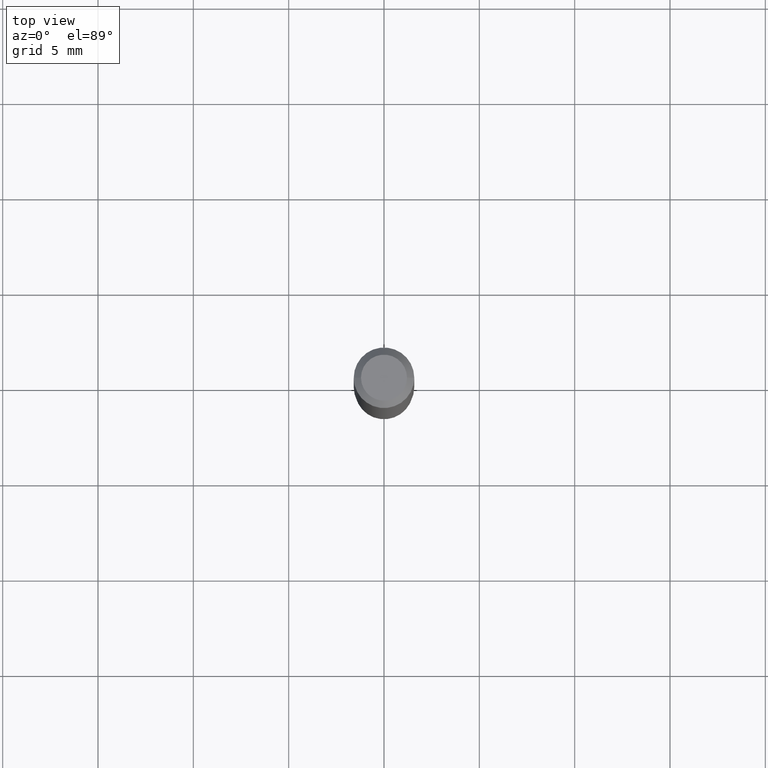
[diagram: clean part render]
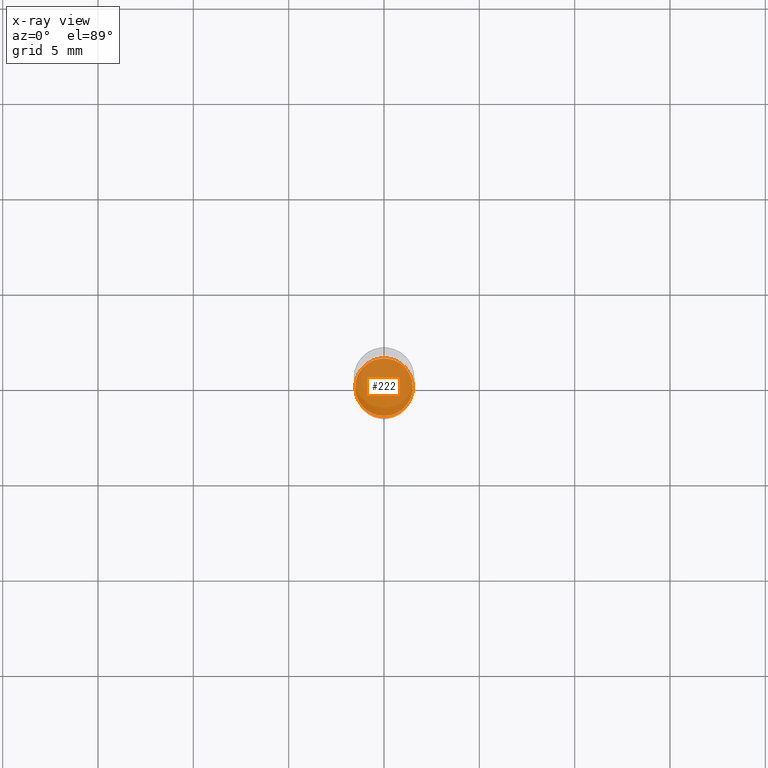
[diagram: x-ray — body ghosted, one internal face saturated and labeled with its STEP entity id]
A machine part, top view, then the same camera in x-ray: the body is ghosted and one INTERNAL B-rep face — a face not visible from any outside direction — is saturated and labeled: STEP entity #222.
In plain terms, the highlighted planar face has unit normal (-0, 0, 1).
Its self-contained STEP definition (entity closure, byte-faithful):
#71 = ORIENTED_EDGE ( 'NONE', *, *, #126, .F. ) ;
#77 = EDGE_CURVE ( 'NONE', #201, #381, #263, .T. ) ;
#89 = DIRECTION ( 'NONE',  ( -2.445468806185136597E-29, 3.491481338843145583E-15, 1.000000000000000000 ) ) ;
#99 = CIRCLE ( 'NONE', #116, 0.05950000000000001815 ) ;
#108 = DIRECTION ( 'NONE',  ( 1.000000000000000000, -6.982962677686265922E-15, 4.876176775795935793E-29 ) ) ;
#116 = AXIS2_PLACEMENT_3D ( 'NONE', #220, #505, #143 ) ;
#126 = EDGE_CURVE ( 'NONE', #381, #201, #99, .T. ) ;
#138 = FACE_OUTER_BOUND ( 'NONE', #379, .T. ) ;
#143 = DIRECTION ( 'NONE',  ( 1.000000000000000000, -6.982962677686273810E-15, 0.000000000000000000 ) ) ;
#174 = CARTESIAN_POINT ( 'NONE',  ( 2.787834439051055989E-29, -3.980288726281186698E-15, -1.140000000000000124 ) ) ;
#194 = ORIENTED_EDGE ( 'NONE', *, *, #77, .F. ) ;
#201 = VERTEX_POINT ( 'NONE', #304 ) ;
#215 = AXIS2_PLACEMENT_3D ( 'NONE', #174, #89, #445 ) ;
#220 = CARTESIAN_POINT ( 'NONE',  ( 2.787834439051055989E-29, -3.980288726281186698E-15, -1.140000000000000124 ) ) ;
#222 = ADVANCED_FACE ( 'NONE', ( #138 ), #429, .F. ) ;
#237 = CARTESIAN_POINT ( 'NONE',  ( -0.05950000000000001815, -3.554866571329815905E-15, -1.140000000000000124 ) ) ;
#263 = CIRCLE ( 'NONE', #215, 0.05950000000000001815 ) ;
#300 = DIRECTION ( 'NONE',  ( -2.438088387897960049E-29, 3.491481338843145188E-15, 1.000000000000000000 ) ) ;
#304 = CARTESIAN_POINT ( 'NONE',  ( 0.05950000000000001815, -4.395775005603519536E-15, -1.140000000000000124 ) ) ;
#341 = CARTESIAN_POINT ( 'NONE',  ( 2.787834439051055989E-29, -3.980288726281186698E-15, -1.140000000000000124 ) ) ;
#379 = EDGE_LOOP ( 'NONE', ( #194, #71 ) ) ;
#381 = VERTEX_POINT ( 'NONE', #237 ) ;
#429 = PLANE ( 'NONE',  #483 ) ;
#445 = DIRECTION ( 'NONE',  ( 1.000000000000000000, -6.982962677686273810E-15, 0.000000000000000000 ) ) ;
#483 = AXIS2_PLACEMENT_3D ( 'NONE', #341, #300, #108 ) ;
#505 = DIRECTION ( 'NONE',  ( -2.445468806185136597E-29, 3.491481338843145583E-15, 1.000000000000000000 ) ) ;